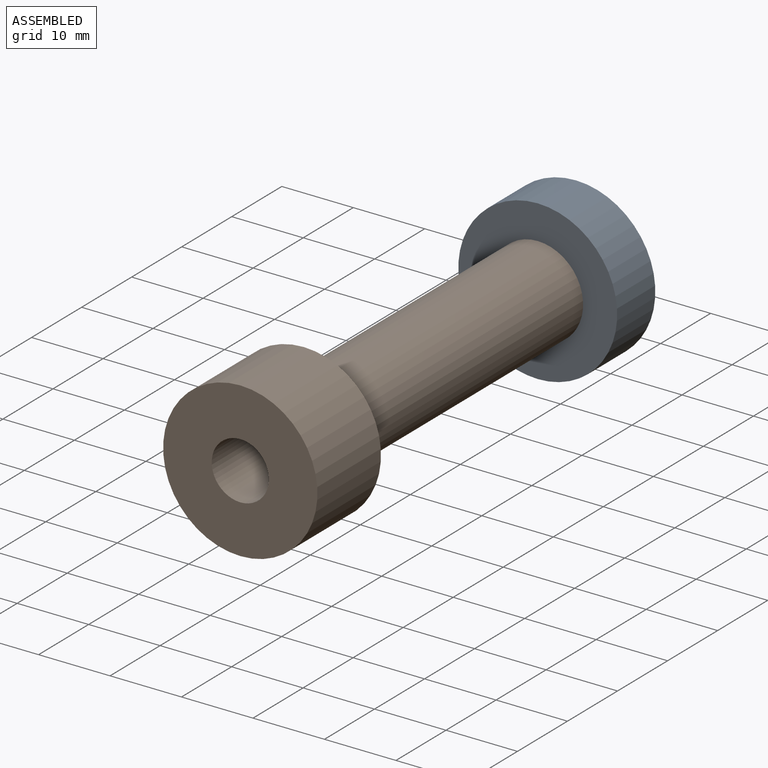
[diagram: assembled view]
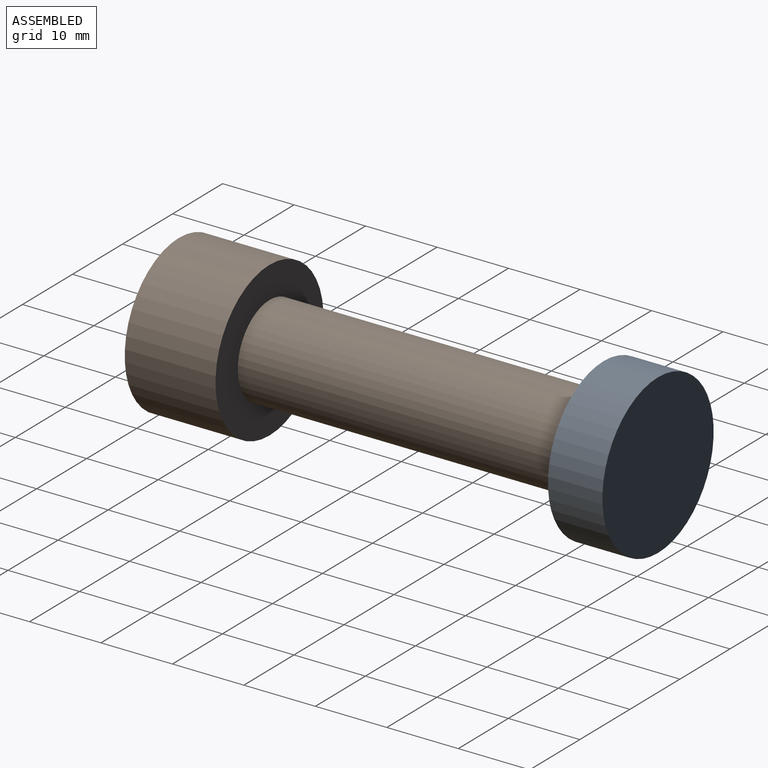
[diagram: assembled view, second angle]
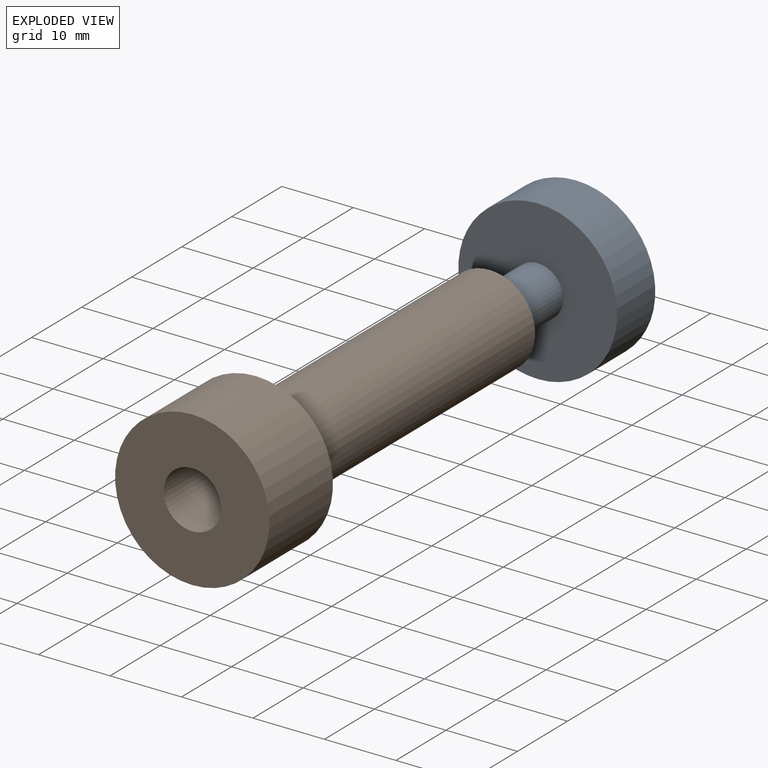
[diagram: exploded view]
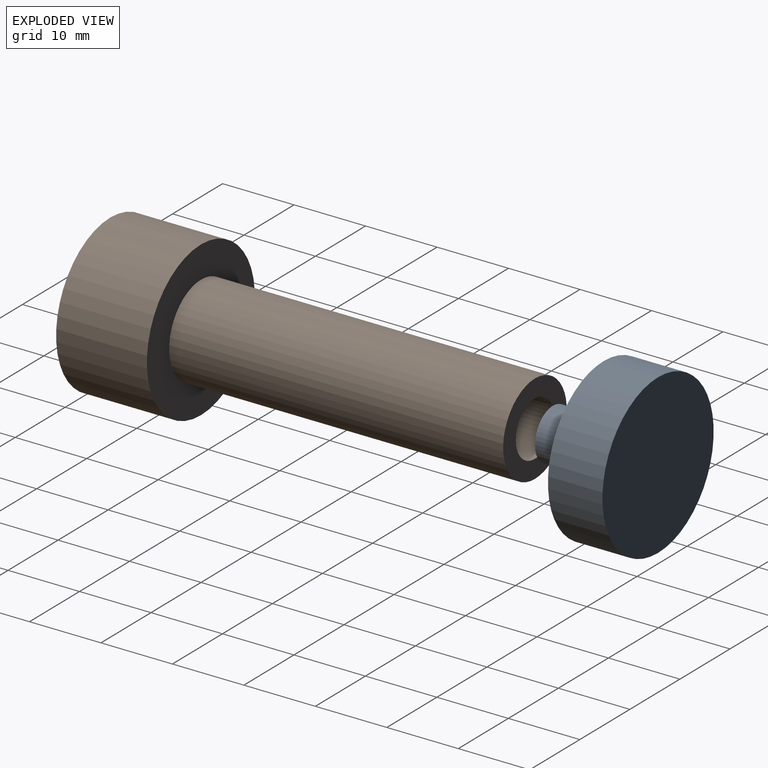
[diagram: exploded view, second angle]
ASSEMBLY  parts=2 mates=2
PART A: 5 faces, bbox 22.2x14.7x22.2 mm
  f0: cylinder r=11.11mm len=22.23mm, axis (0,1,0), area 532mm2, adj f1,f2
  f1: plane 22.23x22.23mm, normal (0,-1,0), area 348.2mm2, adj f0,f3
  f2: plane 22.23x22.23mm, normal (0,1,0), area 387.9mm2, adj f0
  f3: cylinder r=3.56mm len=7.11mm, axis (0,1,0), area 158.9mm2, adj f1,f4
  f4: plane 7.11x7.11mm, normal (0,-1,0), area 39.7mm2, adj f3
PART B: 9 faces, bbox 21.6x59.4x21.6 mm
  f0: cylinder r=6.35mm len=46.74mm, axis (0,1,0), area 1864.7mm2, adj f1,f2
  f1: plane 12.7x12.7mm, normal (0,-1,0), area 81.1mm2, adj f0,f7
  f2: plane 21.59x21.59mm, normal (0,-1,0), area 239.4mm2, adj f0,f4
  f3: cylinder r=4mm len=12.7mm, axis (0,-1,0), area 319.2mm2, adj f5,f6
  f4: cylinder r=10.79mm len=21.59mm, axis (0,-1,0), area 861.4mm2, adj f2,f5
  f5: plane 21.59x21.59mm, normal (0,1,0), area 315.8mm2, adj f3,f4
  f6: plane 8x8mm, normal (0,1,0), area 50.3mm2, adj f3
  f7: cylinder r=3.81mm len=7.62mm, axis (0,-1,0), area 182.4mm2, adj f1,f8
  f8: plane 7.62x7.62mm, normal (0,-1,0), area 45.6mm2, adj f7
PLACE A t=(5.37,19.7,8.4)mm
PLACE B rot(axis=(1,0,0),180deg) t=(5.37,-34.66,8.4)mm
MATE planar A.f0 <-> B.f4  axis (0,-1,0) through (5.37,12.08,8.4)mm
MATE cylindrical B.f0 <-> A.f0  axis (0,-1,0) through (5.37,12.08,8.4)mm
